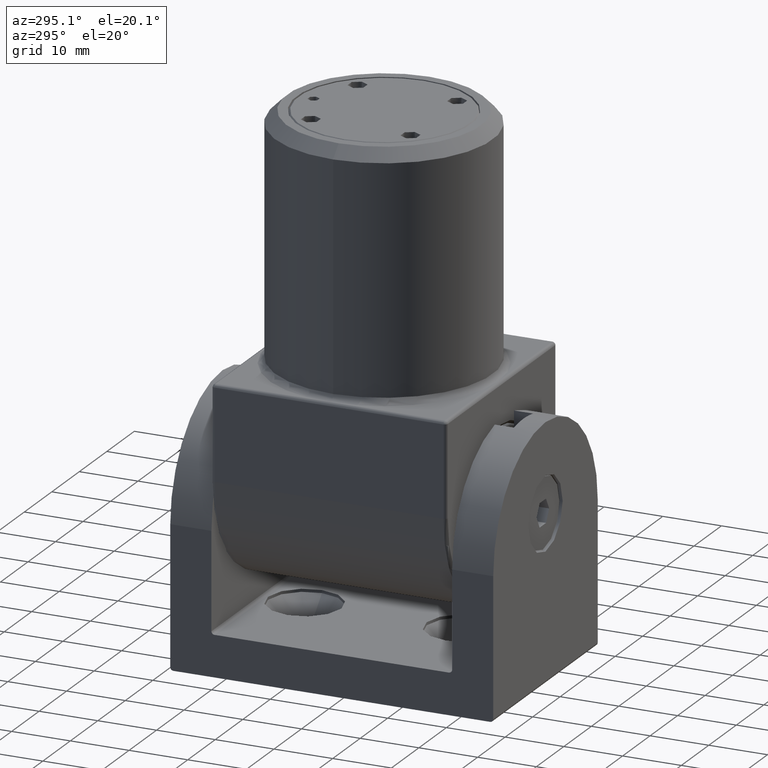
[diagram: clean part render]
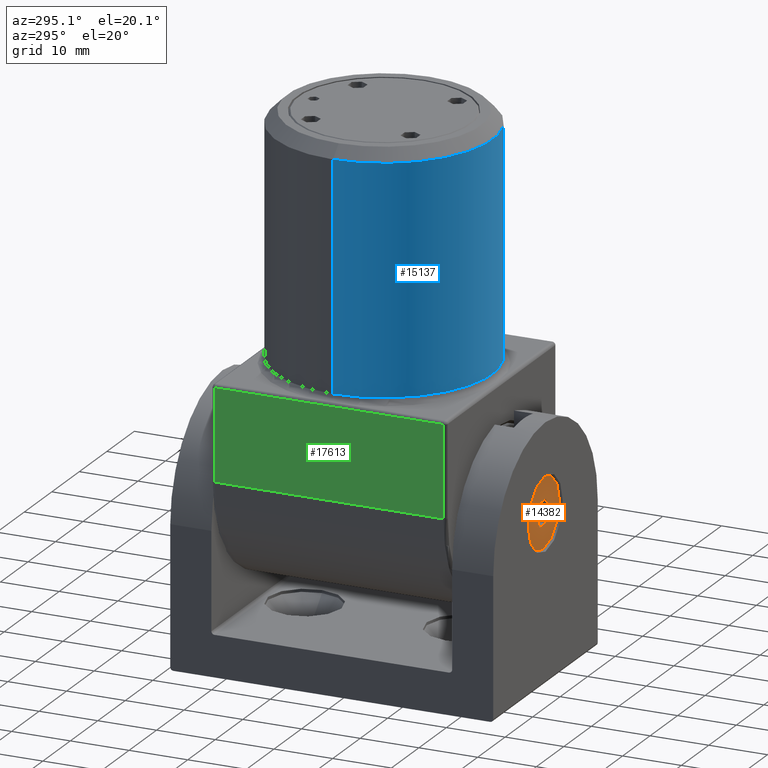
[diagram: same view with three faces highlighted in distinct colors, each labeled with its STEP entity id]
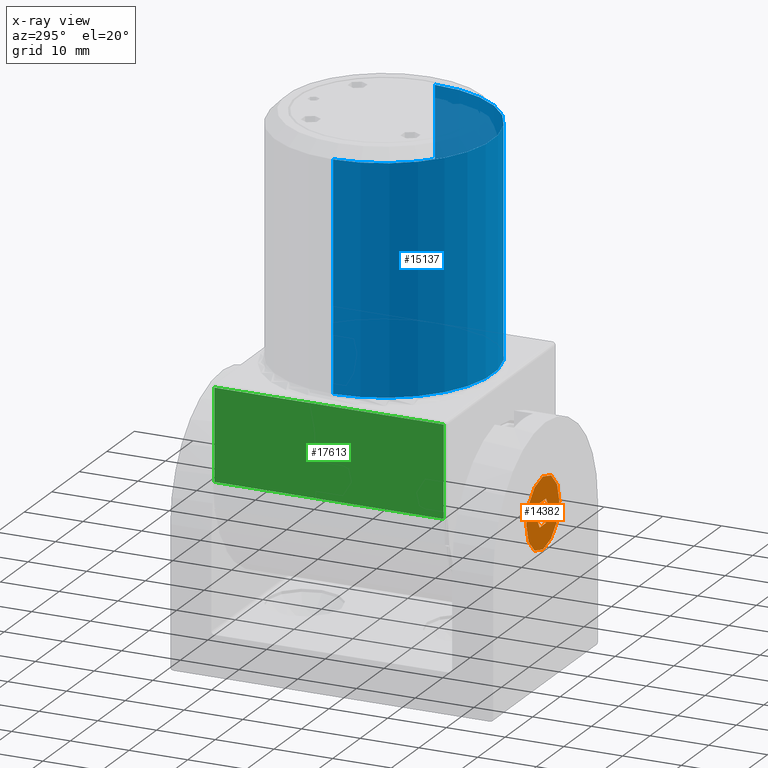
[diagram: x-ray of the same camera — body ghosted, the three highlighted faces saturated]
A machine part, auxiliary view with three faces highlighted in distinct colors.
The next image is the same camera in x-ray (body ghosted, the three faces saturated) — at least one of them is partly hidden behind the body in this view.
Their STEP definitions:

[orange] entity #14382 — the highlighted planar face has unit normal (0, -1, 0).
#38 = LINE ( 'NONE', #14581, #9478 ) ;
#436 = ORIENTED_EDGE ( 'NONE', *, *, #492, .F. ) ;
#492 = EDGE_CURVE ( 'NONE', #5429, #6453, #10928, .T. ) ;
#512 = VECTOR ( 'NONE', #946, 1000.000000000000114 ) ;
#853 = CIRCLE ( 'NONE', #21151, 6.000000000000000000 ) ;
#914 = VECTOR ( 'NONE', #10075, 1000.000000000000114 ) ;
#946 = DIRECTION ( 'NONE',  ( 0.4999999999999999445, -0.8660254037844385966, -0.000000000000000000 ) ) ;
#951 = ORIENTED_EDGE ( 'NONE', *, *, #9101, .T. ) ;
#1062 = LINE ( 'NONE', #10300, #14696 ) ;
#1232 = CARTESIAN_POINT ( 'NONE',  ( 0.000000000000000000, 1.199807826129486086E-31, -9.797174393178825657E-16 ) ) ;
#1314 = VERTEX_POINT ( 'NONE', #11963 ) ;
#1805 = VECTOR ( 'NONE', #8961, 1000.000000000000000 ) ;
#1933 = CARTESIAN_POINT ( 'NONE',  ( 7.347880794884119736E-16, -6.000000000000000000, -1.714505518806294638E-15 ) ) ;
#3078 = AXIS2_PLACEMENT_3D ( 'NONE', #11944, #18766, #18702 ) ;
#3329 = ORIENTED_EDGE ( 'NONE', *, *, #16141, .F. ) ;
#3373 = EDGE_CURVE ( 'NONE', #3530, #4232, #8029, .T. ) ;
#3530 = VERTEX_POINT ( 'NONE', #18794 ) ;
#3540 = ORIENTED_EDGE ( 'NONE', *, *, #13833, .F. ) ;
#3571 = EDGE_LOOP ( 'NONE', ( #951, #21018 ) ) ;
#4107 = CARTESIAN_POINT ( 'NONE',  ( 1.154700538379251906, -1.999999999999999556, -0.000000000000000000 ) ) ;
#4232 = VERTEX_POINT ( 'NONE', #20875 ) ;
#4316 = DIRECTION ( 'NONE',  ( -0.4999999999999998890, 0.8660254037844387076, 0.000000000000000000 ) ) ;
#4596 = FACE_OUTER_BOUND ( 'NONE', #3571, .T. ) ;
#4782 = ORIENTED_EDGE ( 'NONE', *, *, #13415, .F. ) ;
#5028 = ORIENTED_EDGE ( 'NONE', *, *, #3373, .F. ) ;
#5157 = DIRECTION ( 'NONE',  ( 1.000000000000000000, -3.755786496842898071E-16, 0.000000000000000000 ) ) ;
#5231 = DIRECTION ( 'NONE',  ( 0.5000000000000003331, 0.8660254037844383745, 0.000000000000000000 ) ) ;
#5429 = VERTEX_POINT ( 'NONE', #19895 ) ;
#5660 = VECTOR ( 'NONE', #5231, 1000.000000000000114 ) ;
#5709 = DIRECTION ( 'NONE',  ( 0.000000000000000000, 1.000000000000000000, 1.224646799147353207E-16 ) ) ;
#5817 = VERTEX_POINT ( 'NONE', #11788 ) ;
#6453 = VERTEX_POINT ( 'NONE', #12575 ) ;
#6702 = VERTEX_POINT ( 'NONE', #1933 ) ;
#7452 = CARTESIAN_POINT ( 'NONE',  ( 0.000000000000000000, 1.199807826129486086E-31, -9.797174393178825657E-16 ) ) ;
#8029 = LINE ( 'NONE', #21359, #512 ) ;
#8121 = DIRECTION ( 'NONE',  ( 0.000000000000000000, 1.000000000000000000, 1.224646799147353207E-16 ) ) ;
#8926 = CIRCLE ( 'NONE', #17993, 6.000000000000000000 ) ;
#8961 = DIRECTION ( 'NONE',  ( -1.000000000000000000, 0.000000000000000000, 0.000000000000000000 ) ) ;
#9101 = EDGE_CURVE ( 'NONE', #18561, #6702, #8926, .T. ) ;
#9478 = VECTOR ( 'NONE', #4316, 1000.000000000000000 ) ;
#10075 = DIRECTION ( 'NONE',  ( -0.4999999999999999445, -0.8660254037844385966, 0.000000000000000000 ) ) ;
#10300 = CARTESIAN_POINT ( 'NONE',  ( -1.154700538379251240, 2.000000000000000000, 0.000000000000000000 ) ) ;
#10928 = LINE ( 'NONE', #4107, #1805 ) ;
#11048 = EDGE_CURVE ( 'NONE', #6702, #18561, #853, .T. ) ;
#11640 = EDGE_LOOP ( 'NONE', ( #15704, #436, #3540, #5028, #4782, #3329 ) ) ;
#11788 = CARTESIAN_POINT ( 'NONE',  ( -2.309401076758504257, -8.673617379884035472E-16, -4.898587196589413815E-16 ) ) ;
#11928 = CARTESIAN_POINT ( 'NONE',  ( -2.309401076758504257, -3.962830080164986935E-16, 0.000000000000000000 ) ) ;
#11944 = CARTESIAN_POINT ( 'NONE',  ( 0.000000000000000000, 6.000000000000000000, 2.449293598294706907E-16 ) ) ;
#11963 = CARTESIAN_POINT ( 'NONE',  ( -1.154700538379251240, 2.000000000000000000, 0.000000000000000000 ) ) ;
#12575 = CARTESIAN_POINT ( 'NONE',  ( -1.154700538379253238, -1.999999999999999556, 0.000000000000000000 ) ) ;
#13415 = EDGE_CURVE ( 'NONE', #1314, #3530, #1062, .T. ) ;
#13833 = EDGE_CURVE ( 'NONE', #4232, #5429, #20109, .T. ) ;
#14382 = ADVANCED_FACE ( 'NONE', ( #15542, #4596 ), #16983, .T. ) ;
#14581 = CARTESIAN_POINT ( 'NONE',  ( -1.154700538379253238, -1.999999999999999556, 0.000000000000000000 ) ) ;
#14696 = VECTOR ( 'NONE', #5157, 1000.000000000000000 ) ;
#14748 = DIRECTION ( 'NONE',  ( -0.000000000000000000, 1.224646799147353207E-16, -1.000000000000000000 ) ) ;
#14784 = LINE ( 'NONE', #11928, #5660 ) ;
#15542 = FACE_BOUND ( 'NONE', #11640, .T. ) ;
#15704 = ORIENTED_EDGE ( 'NONE', *, *, #17067, .F. ) ;
#16141 = EDGE_CURVE ( 'NONE', #5817, #1314, #14784, .T. ) ;
#16983 = PLANE ( 'NONE',  #3078 ) ;
#17067 = EDGE_CURVE ( 'NONE', #6453, #5817, #38, .T. ) ;
#17993 = AXIS2_PLACEMENT_3D ( 'NONE', #7452, #21074, #5709 ) ;
#18561 = VERTEX_POINT ( 'NONE', #20499 ) ;
#18702 = DIRECTION ( 'NONE',  ( 0.000000000000000000, 1.000000000000000000, 1.224646799147353207E-16 ) ) ;
#18766 = DIRECTION ( 'NONE',  ( -0.000000000000000000, 1.224646799147353207E-16, -1.000000000000000000 ) ) ;
#18794 = CARTESIAN_POINT ( 'NONE',  ( 1.154700538379252350, 1.999999999999999112, 0.000000000000000000 ) ) ;
#19895 = CARTESIAN_POINT ( 'NONE',  ( 1.154700538379251906, -1.999999999999999556, -0.000000000000000000 ) ) ;
#20109 = LINE ( 'NONE', #20291, #914 ) ;
#20291 = CARTESIAN_POINT ( 'NONE',  ( 2.309401076758503368, -6.649504047483846988E-18, -0.000000000000000000 ) ) ;
#20499 = CARTESIAN_POINT ( 'NONE',  ( 0.000000000000000000, 6.000000000000000000, -2.449293598294705921E-16 ) ) ;
#20875 = CARTESIAN_POINT ( 'NONE',  ( 2.309401076758503368, -6.649504047483846988E-18, -0.000000000000000000 ) ) ;
#21018 = ORIENTED_EDGE ( 'NONE', *, *, #11048, .T. ) ;
#21074 = DIRECTION ( 'NONE',  ( -0.000000000000000000, 1.224646799147353207E-16, -1.000000000000000000 ) ) ;
#21151 = AXIS2_PLACEMENT_3D ( 'NONE', #1232, #14748, #8121 ) ;
#21359 = CARTESIAN_POINT ( 'NONE',  ( 1.154700538379252350, 1.999999999999999112, 0.000000000000000000 ) ) ;

[blue] entity #15137 — the highlighted cylindrical surface (partial cylindrical patch) has radius 18.5 mm, axis along (-0, -0, -1).
#55 = EDGE_CURVE ( 'NONE', #20431, #12601, #5807, .T. ) ;
#363 = AXIS2_PLACEMENT_3D ( 'NONE', #10927, #687, #8935 ) ;
#687 = DIRECTION ( 'NONE',  ( -0.000000000000000000, -0.000000000000000000, -1.000000000000000000 ) ) ;
#4031 = ORIENTED_EDGE ( 'NONE', *, *, #7049, .T. ) ;
#4310 = DIRECTION ( 'NONE',  ( 0.000000000000000000, 0.000000000000000000, -1.000000000000000000 ) ) ;
#4914 = EDGE_CURVE ( 'NONE', #8056, #12601, #17276, .T. ) ;
#5029 = ORIENTED_EDGE ( 'NONE', *, *, #15941, .T. ) ;
#5103 = AXIS2_PLACEMENT_3D ( 'NONE', #14503, #4310, #6199 ) ;
#5807 = CIRCLE ( 'NONE', #7774, 18.50000000000000000 ) ;
#6199 = DIRECTION ( 'NONE',  ( 1.000000000000000000, 0.000000000000000000, 0.000000000000000000 ) ) ;
#7049 = EDGE_CURVE ( 'NONE', #8056, #11113, #9042, .T. ) ;
#7774 = AXIS2_PLACEMENT_3D ( 'NONE', #15955, #17530, #11080 ) ;
#8056 = VERTEX_POINT ( 'NONE', #20101 ) ;
#8935 = DIRECTION ( 'NONE',  ( -1.000000000000000000, 0.000000000000000000, 0.000000000000000000 ) ) ;
#9042 = CIRCLE ( 'NONE', #5103, 18.50000000000000000 ) ;
#9358 = VECTOR ( 'NONE', #13993, 1000.000000000000000 ) ;
#9471 = LINE ( 'NONE', #18257, #19251 ) ;
#10607 = EDGE_LOOP ( 'NONE', ( #16684, #4031, #5029, #19180 ) ) ;
#10927 = CARTESIAN_POINT ( 'NONE',  ( 0.000000000000000000, 0.000000000000000000, 41.50000000000000000 ) ) ;
#11080 = DIRECTION ( 'NONE',  ( -1.000000000000000000, 0.000000000000000000, 0.000000000000000000 ) ) ;
#11113 = VERTEX_POINT ( 'NONE', #15649 ) ;
#11504 = DIRECTION ( 'NONE',  ( -0.000000000000000000, -0.000000000000000000, -1.000000000000000000 ) ) ;
#12601 = VERTEX_POINT ( 'NONE', #20133 ) ;
#13688 = CYLINDRICAL_SURFACE ( 'NONE', #363, 18.50000000000000000 ) ;
#13764 = CARTESIAN_POINT ( 'NONE',  ( 18.50000000000000000, 2.265596578422603396E-15, 41.50000000000000000 ) ) ;
#13993 = DIRECTION ( 'NONE',  ( -0.000000000000000000, -0.000000000000000000, -1.000000000000000000 ) ) ;
#14503 = CARTESIAN_POINT ( 'NONE',  ( 0.000000000000000000, 0.000000000000000000, 39.49999999999996447 ) ) ;
#15137 = ADVANCED_FACE ( 'NONE', ( #18216 ), #13688, .T. ) ;
#15649 = CARTESIAN_POINT ( 'NONE',  ( -18.50000000000000000, 0.000000000000000000, 39.49999999999996447 ) ) ;
#15941 = EDGE_CURVE ( 'NONE', #11113, #20431, #9471, .T. ) ;
#15955 = CARTESIAN_POINT ( 'NONE',  ( 0.000000000000000000, 0.000000000000000000, 1.000000000000000888 ) ) ;
#16684 = ORIENTED_EDGE ( 'NONE', *, *, #4914, .F. ) ;
#17276 = LINE ( 'NONE', #13764, #9358 ) ;
#17530 = DIRECTION ( 'NONE',  ( -0.000000000000000000, -0.000000000000000000, 1.000000000000000000 ) ) ;
#18216 = FACE_OUTER_BOUND ( 'NONE', #10607, .T. ) ;
#18257 = CARTESIAN_POINT ( 'NONE',  ( -18.50000000000000000, 0.000000000000000000, 41.50000000000000000 ) ) ;
#18363 = CARTESIAN_POINT ( 'NONE',  ( -18.50000000000000000, 0.000000000000000000, 1.000000000000000888 ) ) ;
#19180 = ORIENTED_EDGE ( 'NONE', *, *, #55, .T. ) ;
#19251 = VECTOR ( 'NONE', #11504, 1000.000000000000000 ) ;
#20101 = CARTESIAN_POINT ( 'NONE',  ( 18.50000000000000000, 2.265596578422603396E-15, 39.49999999999996447 ) ) ;
#20133 = CARTESIAN_POINT ( 'NONE',  ( 18.50000000000000000, 2.265596578422603396E-15, 1.000000000000000888 ) ) ;
#20431 = VERTEX_POINT ( 'NONE', #18363 ) ;

[green] entity #17613 — the highlighted planar face has unit normal (1, 0, -0).
#191 = LINE ( 'NONE', #10917, #11452 ) ;
#296 = FACE_OUTER_BOUND ( 'NONE', #416, .T. ) ;
#416 = EDGE_LOOP ( 'NONE', ( #12848, #11824, #17263, #21227 ) ) ;
#861 = CARTESIAN_POINT ( 'NONE',  ( -20.00000000000000355, 20.00000000000000000, -15.99999999999999645 ) ) ;
#961 = EDGE_CURVE ( 'NONE', #7431, #13994, #7133, .T. ) ;
#2955 = DIRECTION ( 'NONE',  ( -0.000000000000000000, 1.000000000000000000, -0.000000000000000000 ) ) ;
#4053 = LINE ( 'NONE', #861, #5944 ) ;
#4093 = DIRECTION ( 'NONE',  ( -0.000000000000000000, -1.000000000000000000, -0.000000000000000000 ) ) ;
#5791 = DIRECTION ( 'NONE',  ( -2.168404344971010347E-16, 0.000000000000000000, -1.000000000000000000 ) ) ;
#5913 = CARTESIAN_POINT ( 'NONE',  ( -20.00000000000000355, -19.50000000000000000, -15.99999999999999645 ) ) ;
#5944 = VECTOR ( 'NONE', #4093, 1000.000000000000000 ) ;
#6768 = EDGE_CURVE ( 'NONE', #21572, #20192, #191, .T. ) ;
#7133 = LINE ( 'NONE', #19878, #10378 ) ;
#7431 = VERTEX_POINT ( 'NONE', #17485 ) ;
#8592 = AXIS2_PLACEMENT_3D ( 'NONE', #14178, #9070, #5791 ) ;
#9070 = DIRECTION ( 'NONE',  ( 1.000000000000000000, 0.000000000000000000, -2.168404344971010347E-16 ) ) ;
#10128 = EDGE_CURVE ( 'NONE', #20192, #7431, #21394, .T. ) ;
#10378 = VECTOR ( 'NONE', #14839, 1000.000000000000000 ) ;
#10917 = CARTESIAN_POINT ( 'NONE',  ( -20.00000000000000355, -19.50000000000000000, -15.99999999999998934 ) ) ;
#11452 = VECTOR ( 'NONE', #18113, 1000.000000000000000 ) ;
#11824 = ORIENTED_EDGE ( 'NONE', *, *, #6768, .T. ) ;
#12848 = ORIENTED_EDGE ( 'NONE', *, *, #14715, .T. ) ;
#13994 = VERTEX_POINT ( 'NONE', #17376 ) ;
#14178 = CARTESIAN_POINT ( 'NONE',  ( -20.00000000000000355, 20.00000000000000000, -15.99999999999998934 ) ) ;
#14715 = EDGE_CURVE ( 'NONE', #13994, #21572, #4053, .T. ) ;
#14839 = DIRECTION ( 'NONE',  ( -2.168404344971010347E-16, -0.000000000000000000, -1.000000000000000000 ) ) ;
#16327 = VECTOR ( 'NONE', #2955, 1000.000000000000000 ) ;
#17263 = ORIENTED_EDGE ( 'NONE', *, *, #10128, .T. ) ;
#17282 = PLANE ( 'NONE',  #8592 ) ;
#17376 = CARTESIAN_POINT ( 'NONE',  ( -20.00000000000000355, 19.50000000000000000, -15.99999999999999645 ) ) ;
#17485 = CARTESIAN_POINT ( 'NONE',  ( -20.00000000000000000, 19.50000000000000000, -0.4999999999999998890 ) ) ;
#17613 = ADVANCED_FACE ( 'NONE', ( #296 ), #17282, .F. ) ;
#18113 = DIRECTION ( 'NONE',  ( 2.168404344971010347E-16, -0.000000000000000000, 1.000000000000000000 ) ) ;
#19744 = CARTESIAN_POINT ( 'NONE',  ( -20.00000000000000000, -19.50000000000000000, -0.4999999999999998890 ) ) ;
#19878 = CARTESIAN_POINT ( 'NONE',  ( -20.00000000000000355, 19.50000000000000000, -15.99999999999999645 ) ) ;
#20192 = VERTEX_POINT ( 'NONE', #19744 ) ;
#21227 = ORIENTED_EDGE ( 'NONE', *, *, #961, .T. ) ;
#21394 = LINE ( 'NONE', #21797, #16327 ) ;
#21572 = VERTEX_POINT ( 'NONE', #5913 ) ;
#21797 = CARTESIAN_POINT ( 'NONE',  ( -20.00000000000000000, 20.00000000000000000, -0.5000000000000004441 ) ) ;